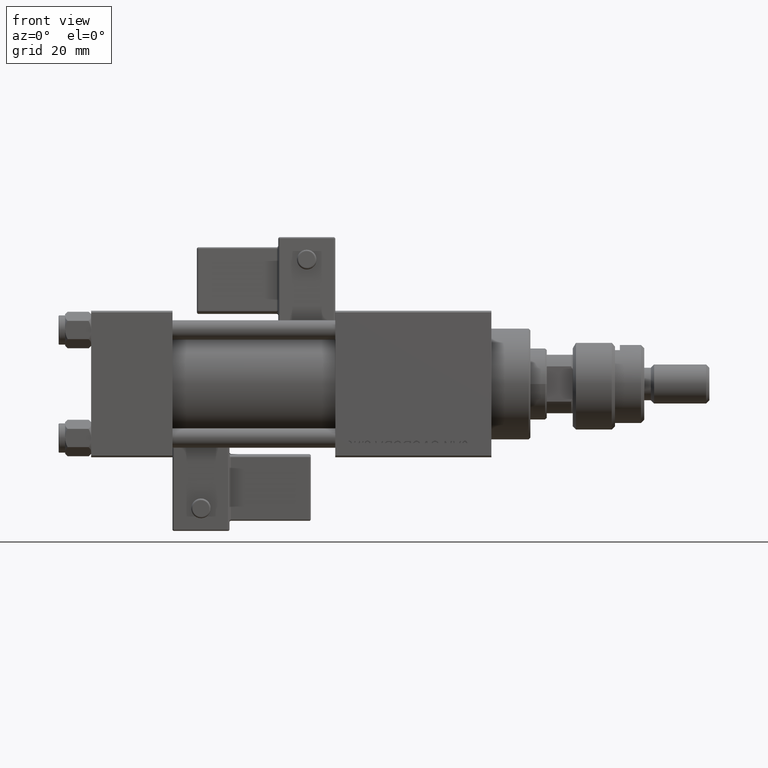
[diagram: clean part render]
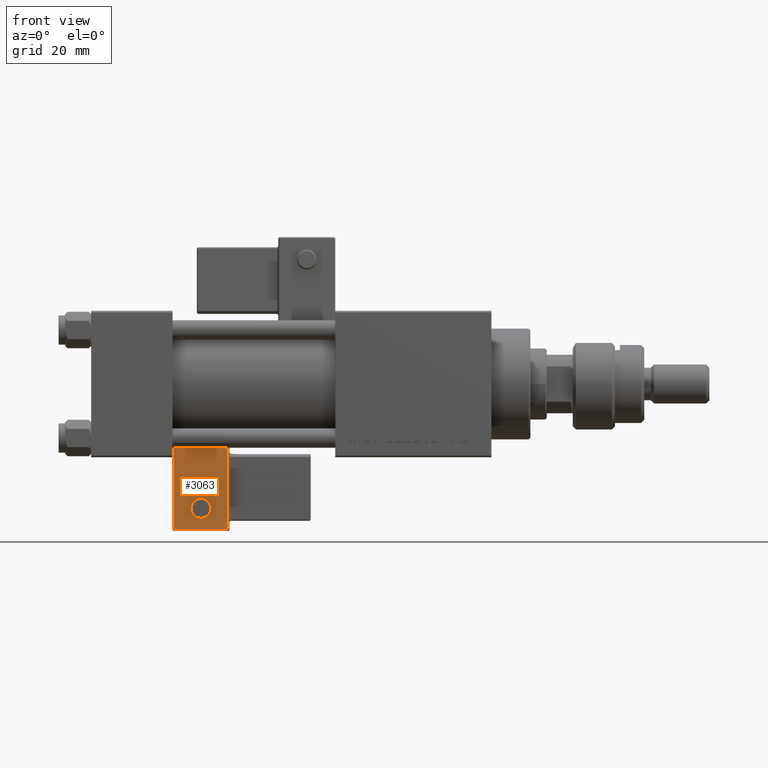
[diagram: same view with one face highlighted and labeled with its STEP entity id]
A machine part, front view. The second image highlights one B-rep face of the part: STEP entity #3063.
In plain terms, the highlighted planar face has unit normal (0, 0.9994, 0.0353).
Its self-contained STEP definition (entity closure, byte-faithful):
#68 = VECTOR ( 'NONE', #4977, 1000.000000000000000 ) ;
#1256 = ORIENTED_EDGE ( 'NONE', *, *, #26435, .F. ) ;
#2384 = EDGE_LOOP ( 'NONE', ( #8999, #1256 ) ) ;
#2835 = LINE ( 'NONE', #39283, #19263 ) ;
#3063 = ADVANCED_FACE ( 'NONE', ( #12738, #25544 ), #29341, .F. ) ;
#4977 = DIRECTION ( 'NONE',  ( -1.334402673828313093E-16, 0.000000000000000000, -1.000000000000000000 ) ) ;
#6137 = CARTESIAN_POINT ( 'NONE',  ( -4.336808689942017736E-16, -33.75000000000000000, 9.000000000000001776 ) ) ;
#6565 = EDGE_CURVE ( 'NONE', #15376, #30352, #20327, .T. ) ;
#7189 = VERTEX_POINT ( 'NONE', #36979 ) ;
#8769 = CARTESIAN_POINT ( 'NONE',  ( -8.250000000000003553, -33.75000000000000000, 1.100882205908358788E-15 ) ) ;
#8999 = ORIENTED_EDGE ( 'NONE', *, *, #6565, .F. ) ;
#11400 = VECTOR ( 'NONE', #14699, 1000.000000000000000 ) ;
#12667 = VERTEX_POINT ( 'NONE', #37988 ) ;
#12738 = FACE_OUTER_BOUND ( 'NONE', #40771, .T. ) ;
#14699 = DIRECTION ( 'NONE',  ( -1.000000000000000000, 0.000000000000000000, 1.982541115402065110E-16 ) ) ;
#15372 = VERTEX_POINT ( 'NONE', #48282 ) ;
#15376 = VERTEX_POINT ( 'NONE', #6137 ) ;
#16199 = ORIENTED_EDGE ( 'NONE', *, *, #48310, .T. ) ;
#16900 = VERTEX_POINT ( 'NONE', #17113 ) ;
#17113 = CARTESIAN_POINT ( 'NONE',  ( 8.250000000000003553, -33.75000000000000000, -0.5000000000000002220 ) ) ;
#19263 = VECTOR ( 'NONE', #39811, 1000.000000000000000 ) ;
#19519 = DIRECTION ( 'NONE',  ( 1.000000000000000000, 0.000000000000000000, 0.000000000000000000 ) ) ;
#19780 = LINE ( 'NONE', #29466, #23387 ) ;
#20327 = CIRCLE ( 'NONE', #39438, 2.999999999999999112 ) ;
#23387 = VECTOR ( 'NONE', #19519, 1000.000000000000000 ) ;
#24702 = DIRECTION ( 'NONE',  ( 0.000000000000000000, 0.000000000000000000, 1.000000000000000000 ) ) ;
#24974 = EDGE_CURVE ( 'NONE', #7189, #12667, #38154, .T. ) ;
#25185 = CARTESIAN_POINT ( 'NONE',  ( -4.336808689942017736E-16, -33.75000000000000000, 6.000000000000001776 ) ) ;
#25544 = FACE_BOUND ( 'NONE', #2384, .T. ) ;
#26023 = EDGE_CURVE ( 'NONE', #15372, #7189, #31838, .T. ) ;
#26435 = EDGE_CURVE ( 'NONE', #30352, #15376, #40047, .T. ) ;
#27756 = ORIENTED_EDGE ( 'NONE', *, *, #26023, .T. ) ;
#27765 = CARTESIAN_POINT ( 'NONE',  ( 4.857225732735059864E-15, -33.75000000000000000, 24.50000000000000000 ) ) ;
#28515 = DIRECTION ( 'NONE',  ( -0.000000000000000000, -1.000000000000000000, -0.000000000000000000 ) ) ;
#29341 = PLANE ( 'NONE',  #39103 ) ;
#29466 = CARTESIAN_POINT ( 'NONE',  ( 0.000000000000000000, -33.75000000000000000, -0.5000000000000002220 ) ) ;
#29890 = DIRECTION ( 'NONE',  ( 0.000000000000000000, 1.000000000000000000, 0.000000000000000000 ) ) ;
#30352 = VERTEX_POINT ( 'NONE', #50302 ) ;
#31838 = LINE ( 'NONE', #27765, #11400 ) ;
#35354 = ORIENTED_EDGE ( 'NONE', *, *, #38965, .T. ) ;
#36354 = DIRECTION ( 'NONE',  ( 0.000000000000000000, 0.000000000000000000, 1.000000000000000000 ) ) ;
#36979 = CARTESIAN_POINT ( 'NONE',  ( -8.250000000000000000, -33.75000000000000000, 24.50000000000000355 ) ) ;
#37988 = CARTESIAN_POINT ( 'NONE',  ( -8.250000000000003553, -33.75000000000000000, -0.5000000000000002220 ) ) ;
#38154 = LINE ( 'NONE', #8769, #68 ) ;
#38965 = EDGE_CURVE ( 'NONE', #12667, #16900, #19780, .T. ) ;
#39103 = AXIS2_PLACEMENT_3D ( 'NONE', #50277, #29890, #45913 ) ;
#39283 = CARTESIAN_POINT ( 'NONE',  ( 8.250000000000003553, -33.75000000000000000, 1.100882205908358986E-15 ) ) ;
#39438 = AXIS2_PLACEMENT_3D ( 'NONE', #53769, #28515, #24702 ) ;
#39811 = DIRECTION ( 'NONE',  ( -1.334402673828313339E-16, 0.000000000000000000, 1.000000000000000000 ) ) ;
#40047 = CIRCLE ( 'NONE', #44386, 2.999999999999999112 ) ;
#40697 = DIRECTION ( 'NONE',  ( -0.000000000000000000, -1.000000000000000000, -0.000000000000000000 ) ) ;
#40771 = EDGE_LOOP ( 'NONE', ( #27756, #50027, #35354, #16199 ) ) ;
#44386 = AXIS2_PLACEMENT_3D ( 'NONE', #25185, #40697, #36354 ) ;
#45913 = DIRECTION ( 'NONE',  ( 0.000000000000000000, -0.000000000000000000, 1.000000000000000000 ) ) ;
#48282 = CARTESIAN_POINT ( 'NONE',  ( 8.250000000000000000, -33.75000000000000000, 24.50000000000000000 ) ) ;
#48310 = EDGE_CURVE ( 'NONE', #16900, #15372, #2835, .T. ) ;
#50027 = ORIENTED_EDGE ( 'NONE', *, *, #24974, .T. ) ;
#50277 = CARTESIAN_POINT ( 'NONE',  ( 0.000000000000000000, -33.75000000000000000, 0.000000000000000000 ) ) ;
#50302 = CARTESIAN_POINT ( 'NONE',  ( -6.628682924999581145E-17, -33.75000000000000000, 3.000000000000001776 ) ) ;
#53769 = CARTESIAN_POINT ( 'NONE',  ( -4.336808689942017736E-16, -33.75000000000000000, 6.000000000000001776 ) ) ;